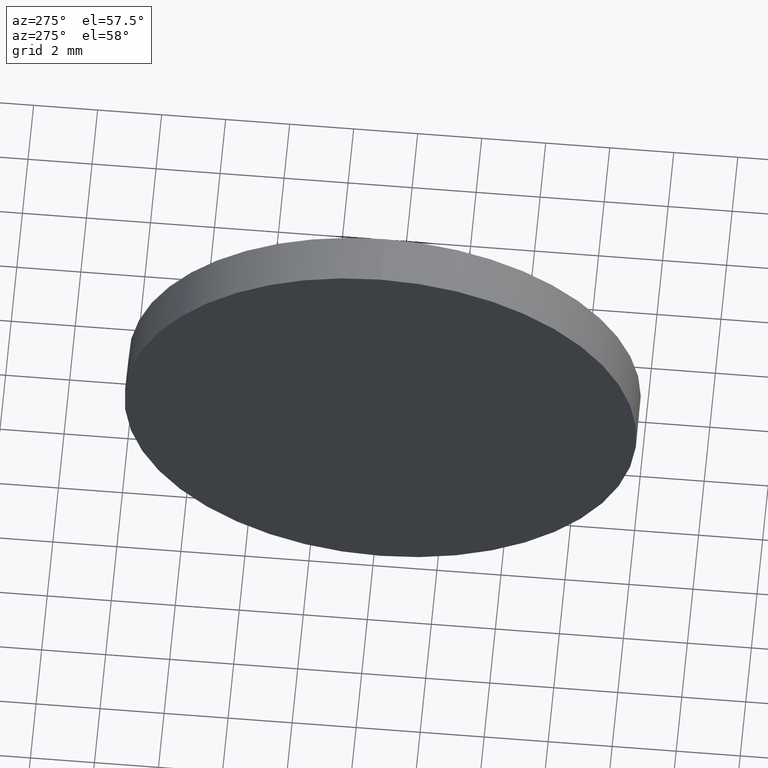
[diagram: clean part render]
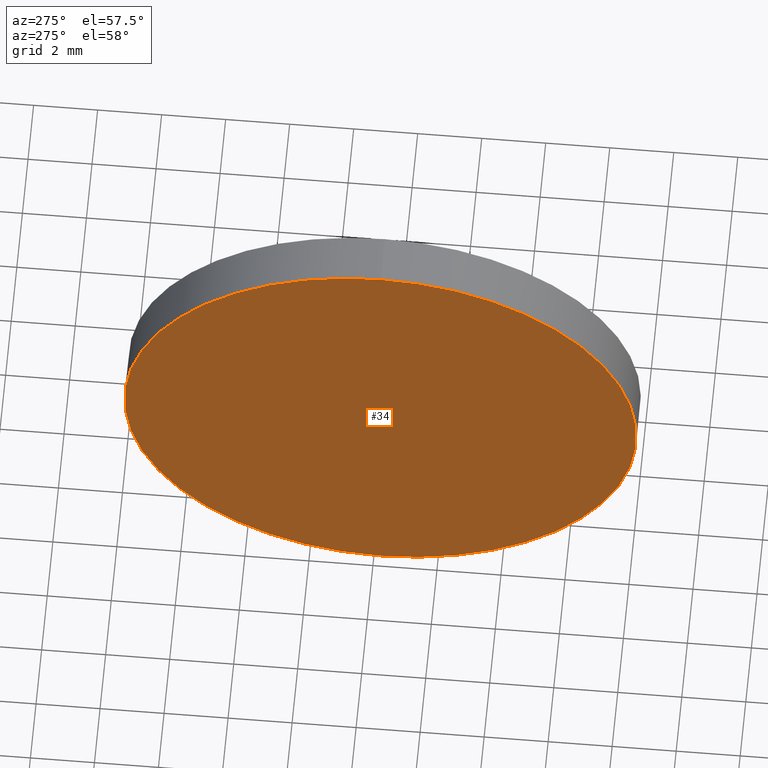
[diagram: same view with one face highlighted and labeled with its STEP entity id]
A machine part, auxiliary view. The second image highlights one B-rep face of the part: STEP entity #34.
In plain terms, the highlighted planar face has unit normal (1, 0, 0).
Its self-contained STEP definition (entity closure, byte-faithful):
#24 = FACE_OUTER_BOUND ( 'NONE', #137, .T. ) ;
#34 = ADVANCED_FACE ( 'NONE', ( #24 ), #124, .F. ) ;
#42 = AXIS2_PLACEMENT_3D ( 'NONE', #167, #151, #52 ) ;
#51 = DIRECTION ( 'NONE',  ( 0.0000000000000000000, 0.0000000000000000000, 1.000000000000000000 ) ) ;
#52 = DIRECTION ( 'NONE',  ( 0.0000000000000000000, 0.0000000000000000000, -1.000000000000000000 ) ) ;
#62 = EDGE_CURVE ( 'NONE', #146, #138, #115, .T. ) ;
#91 = CARTESIAN_POINT ( 'NONE',  ( 524.1602977152133500, 67.77708632238261500, 0.0000000000000000000 ) ) ;
#94 = AXIS2_PLACEMENT_3D ( 'NONE', #166, #180, #51 ) ;
#114 = CARTESIAN_POINT ( 'NONE',  ( 524.1602977152133500, 67.77708632238261500, 7.999999999999992900 ) ) ;
#115 = CIRCLE ( 'NONE', #94, 7.999999999999992900 ) ;
#120 = ORIENTED_EDGE ( 'NONE', *, *, #62, .T. ) ;
#124 = PLANE ( 'NONE',  #42 ) ;
#125 = ORIENTED_EDGE ( 'NONE', *, *, #135, .T. ) ;
#135 = EDGE_CURVE ( 'NONE', #138, #146, #175, .T. ) ;
#137 = EDGE_LOOP ( 'NONE', ( #120, #125 ) ) ;
#138 = VERTEX_POINT ( 'NONE', #165 ) ;
#139 = AXIS2_PLACEMENT_3D ( 'NONE', #91, #141, #184 ) ;
#141 = DIRECTION ( 'NONE',  ( -1.000000000000000000, -0.0000000000000000000, -0.0000000000000000000 ) ) ;
#146 = VERTEX_POINT ( 'NONE', #114 ) ;
#151 = DIRECTION ( 'NONE',  ( 1.000000000000000000, 0.0000000000000000000, 0.0000000000000000000 ) ) ;
#165 = CARTESIAN_POINT ( 'NONE',  ( 524.1602977152133500, 67.77708632238261500, -7.999999999999992900 ) ) ;
#166 = CARTESIAN_POINT ( 'NONE',  ( 524.1602977152133500, 67.77708632238261500, 0.0000000000000000000 ) ) ;
#167 = CARTESIAN_POINT ( 'NONE',  ( 524.1602977152133500, 67.77708632238261500, 0.0000000000000000000 ) ) ;
#175 = CIRCLE ( 'NONE', #139, 7.999999999999992900 ) ;
#180 = DIRECTION ( 'NONE',  ( -1.000000000000000000, -0.0000000000000000000, -0.0000000000000000000 ) ) ;
#184 = DIRECTION ( 'NONE',  ( 0.0000000000000000000, 0.0000000000000000000, 1.000000000000000000 ) ) ;